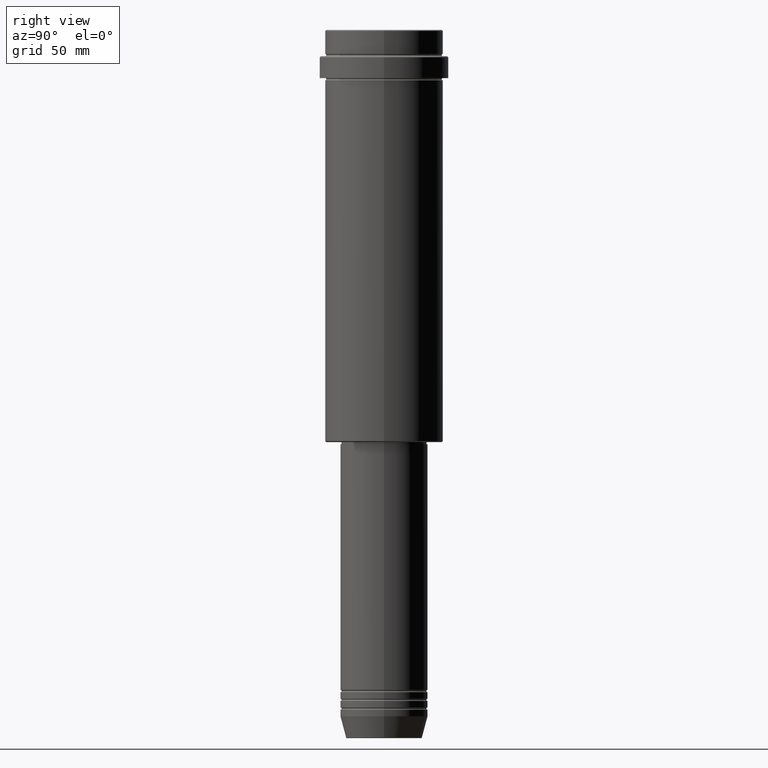
[diagram: clean part render]
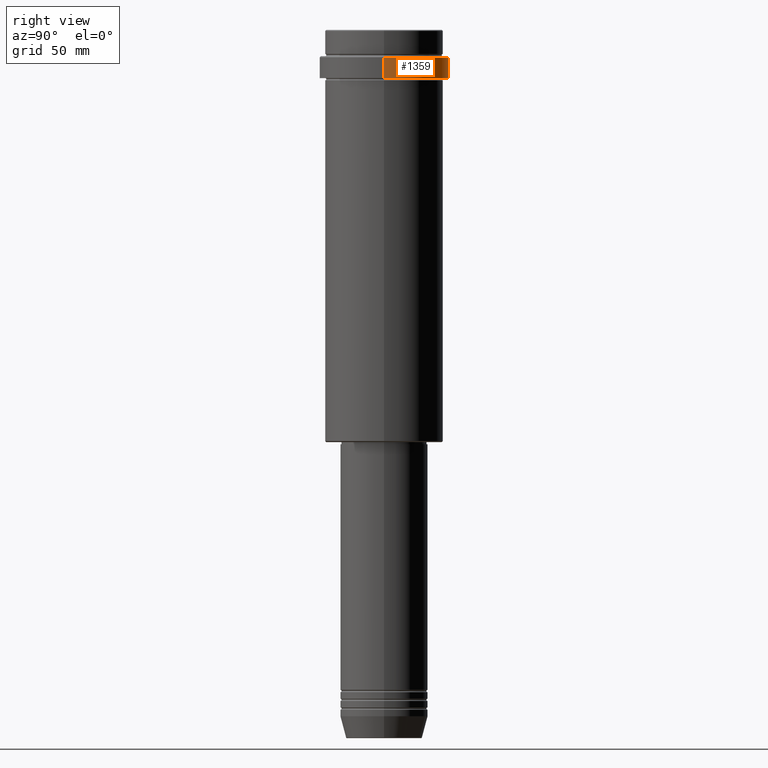
[diagram: same view with one face highlighted and labeled with its STEP entity id]
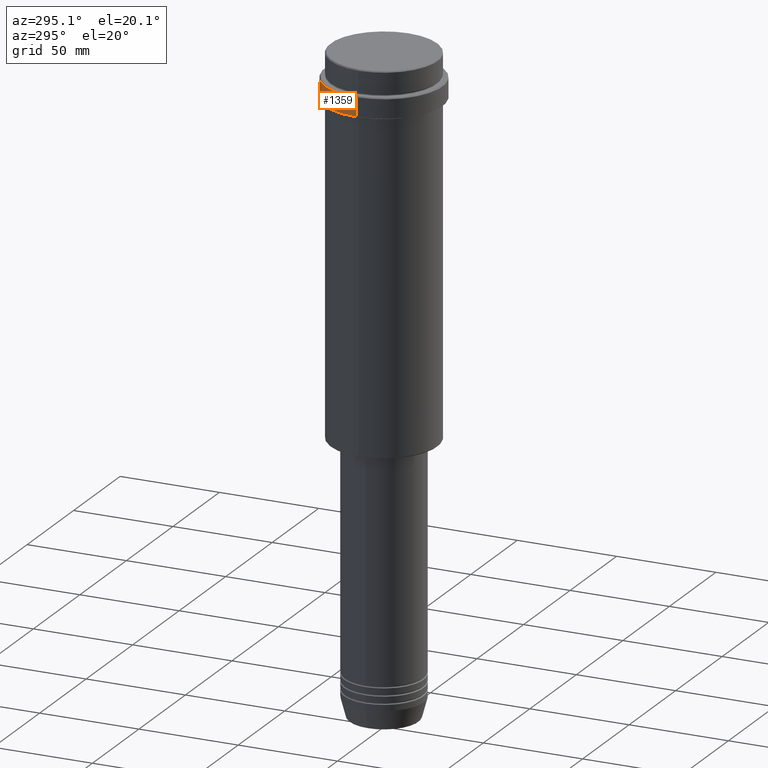
[diagram: same view with one face highlighted and labeled with its STEP entity id]
A machine part, right view. The second image highlights one B-rep face of the part: STEP entity #1359.
A second angle (auxiliary view) of the same face is appended — the face is thin or edge-on in the first view.
In plain terms, the highlighted cylindrical surface (partial cylindrical patch) has radius 29.5 mm, axis along (-0, -0, 1).
Its self-contained STEP definition (entity closure, byte-faithful):
#78 = CARTESIAN_POINT ( 'NONE',  ( 29.50000000000000000, 0.000000000000000000, -12.50000000000011546 ) ) ;
#89 = FACE_OUTER_BOUND ( 'NONE', #441, .T. ) ;
#98 = DIRECTION ( 'NONE',  ( -0.000000000000000000, -0.000000000000000000, 1.000000000000000000 ) ) ;
#130 = CIRCLE ( 'NONE', #936, 29.49999999999999645 ) ;
#208 = VERTEX_POINT ( 'NONE', #715 ) ;
#223 = LINE ( 'NONE', #1306, #718 ) ;
#231 = DIRECTION ( 'NONE',  ( 0.000000000000000000, 0.000000000000000000, -1.000000000000000000 ) ) ;
#334 = DIRECTION ( 'NONE',  ( 1.000000000000000000, 0.000000000000000000, 0.000000000000000000 ) ) ;
#370 = AXIS2_PLACEMENT_3D ( 'NONE', #413, #1218, #437 ) ;
#377 = ORIENTED_EDGE ( 'NONE', *, *, #542, .T. ) ;
#399 = CARTESIAN_POINT ( 'NONE',  ( 29.49999999999999645, 0.000000000000000000, -22.00000000000000711 ) ) ;
#401 = DIRECTION ( 'NONE',  ( -0.000000000000000000, -0.000000000000000000, 1.000000000000000000 ) ) ;
#413 = CARTESIAN_POINT ( 'NONE',  ( 0.000000000000000000, 0.000000000000000000, 0.000000000000000000 ) ) ;
#425 = EDGE_CURVE ( 'NONE', #842, #1273, #223, .T. ) ;
#437 = DIRECTION ( 'NONE',  ( 1.000000000000000000, 0.000000000000000000, 0.000000000000000000 ) ) ;
#441 = EDGE_LOOP ( 'NONE', ( #377, #696, #509, #611 ) ) ;
#470 = DIRECTION ( 'NONE',  ( -0.000000000000000000, -0.000000000000000000, 1.000000000000000000 ) ) ;
#509 = ORIENTED_EDGE ( 'NONE', *, *, #570, .T. ) ;
#542 = EDGE_CURVE ( 'NONE', #842, #1123, #130, .T. ) ;
#570 = EDGE_CURVE ( 'NONE', #208, #1273, #705, .T. ) ;
#611 = ORIENTED_EDGE ( 'NONE', *, *, #425, .F. ) ;
#696 = ORIENTED_EDGE ( 'NONE', *, *, #841, .T. ) ;
#705 = CIRCLE ( 'NONE', #740, 29.50000000000000000 ) ;
#715 = CARTESIAN_POINT ( 'NONE',  ( -29.50000000000000000, 3.612708057484691604E-15, -12.50000000000011546 ) ) ;
#718 = VECTOR ( 'NONE', #401, 1000.000000000000000 ) ;
#740 = AXIS2_PLACEMENT_3D ( 'NONE', #1010, #231, #1243 ) ;
#802 = CARTESIAN_POINT ( 'NONE',  ( 0.000000000000000000, 0.000000000000000000, -22.00000000000000711 ) ) ;
#838 = LINE ( 'NONE', #1288, #1156 ) ;
#841 = EDGE_CURVE ( 'NONE', #1123, #208, #838, .T. ) ;
#842 = VERTEX_POINT ( 'NONE', #399 ) ;
#921 = CARTESIAN_POINT ( 'NONE',  ( -29.49999999999999645, 3.612708057484690815E-15, -22.00000000000000711 ) ) ;
#936 = AXIS2_PLACEMENT_3D ( 'NONE', #802, #470, #334 ) ;
#972 = CYLINDRICAL_SURFACE ( 'NONE', #370, 29.50000000000000000 ) ;
#1010 = CARTESIAN_POINT ( 'NONE',  ( 0.000000000000000000, 0.000000000000000000, -12.50000000000011546 ) ) ;
#1123 = VERTEX_POINT ( 'NONE', #921 ) ;
#1156 = VECTOR ( 'NONE', #98, 1000.000000000000000 ) ;
#1218 = DIRECTION ( 'NONE',  ( -0.000000000000000000, -0.000000000000000000, 1.000000000000000000 ) ) ;
#1243 = DIRECTION ( 'NONE',  ( 1.000000000000000000, 0.000000000000000000, 0.000000000000000000 ) ) ;
#1273 = VERTEX_POINT ( 'NONE', #78 ) ;
#1288 = CARTESIAN_POINT ( 'NONE',  ( -29.50000000000000000, 3.612708057484691604E-15, 0.000000000000000000 ) ) ;
#1306 = CARTESIAN_POINT ( 'NONE',  ( 29.50000000000000000, 0.000000000000000000, 0.000000000000000000 ) ) ;
#1359 = ADVANCED_FACE ( 'NONE', ( #89 ), #972, .T. ) ;